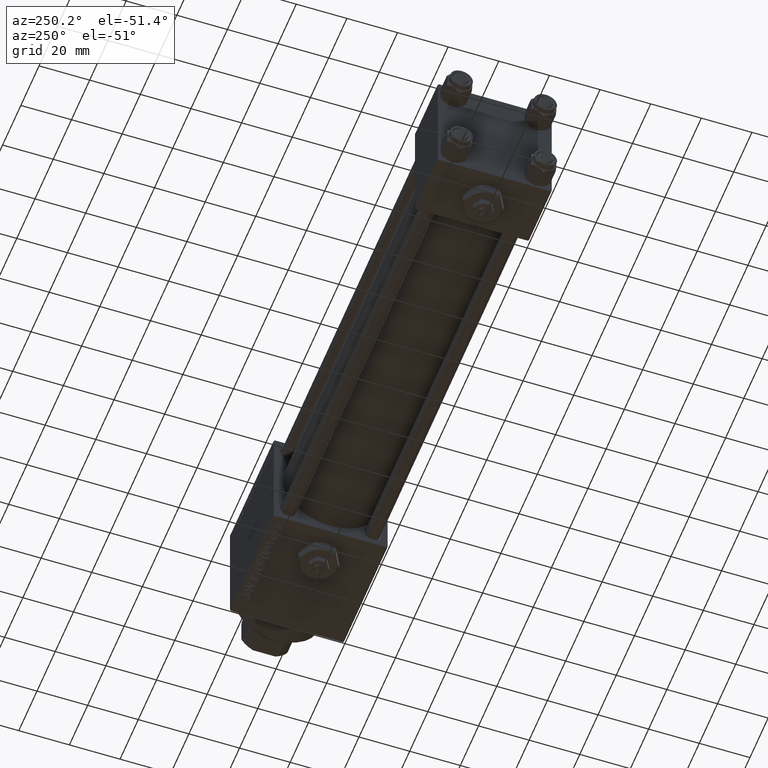
[diagram: clean part render]
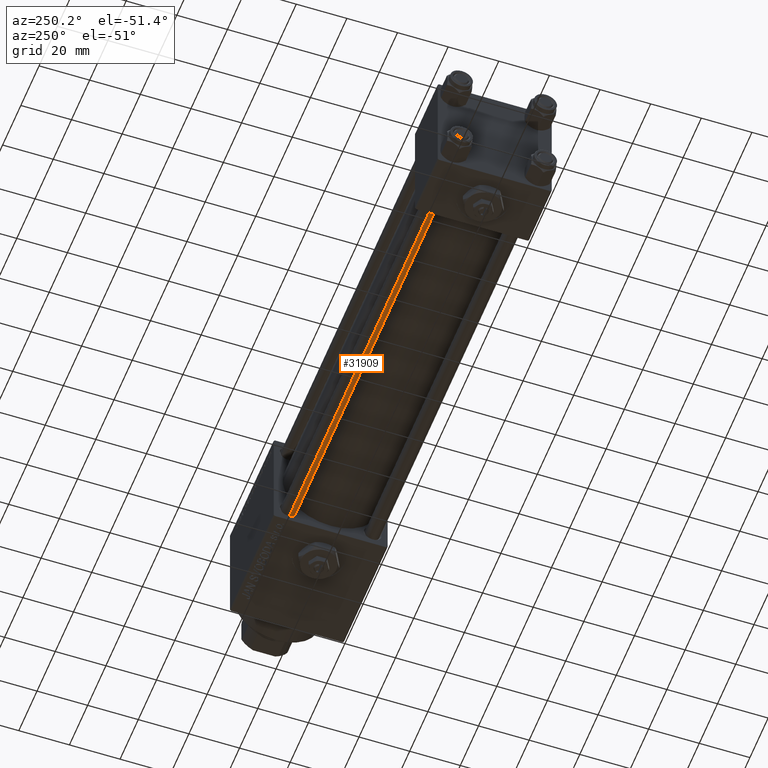
[diagram: same view with one face highlighted and labeled with its STEP entity id]
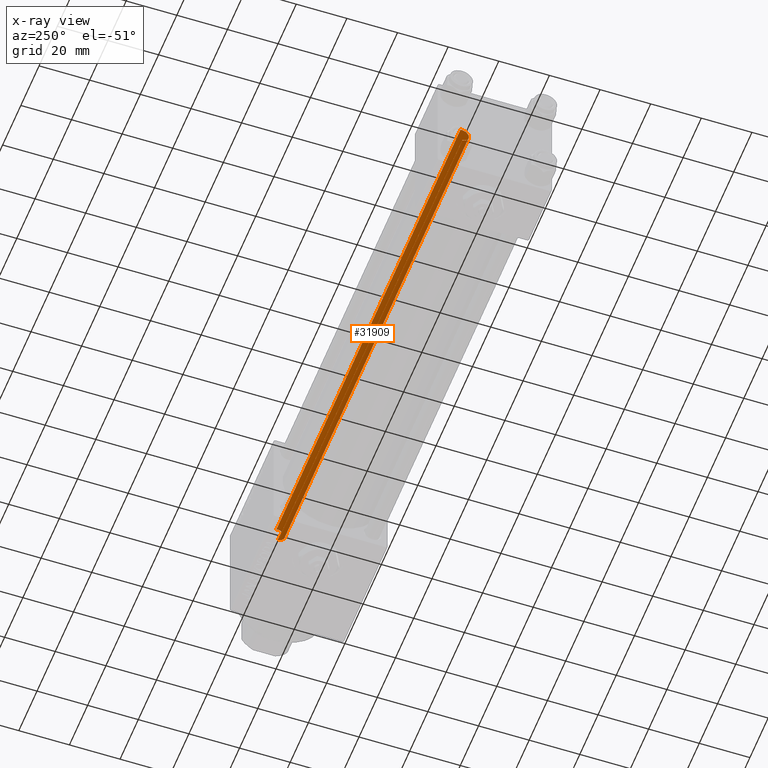
[diagram: x-ray of the same camera — body ghosted, the highlighted face saturated]
A machine part, auxiliary view. The second image highlights one B-rep face of the part: STEP entity #31909.
The next image is the same camera in x-ray: the body ghosted, the highlighted face saturated — about 0% of this face is hidden behind the body in this view.
In plain terms, the highlighted cylindrical surface (edge-blend (fillet) strip) has radius 3 mm, axis along (1, -0, 0).
Its self-contained STEP definition (entity closure, byte-faithful):
#705 = VERTEX_POINT ( 'NONE', #16305 ) ;
#1947 = VERTEX_POINT ( 'NONE', #28889 ) ;
#3213 = ORIENTED_EDGE ( 'NONE', *, *, #46983, .T. ) ;
#3288 = EDGE_CURVE ( 'NONE', #12715, #42295, #29601, .T. ) ;
#5066 = ORIENTED_EDGE ( 'NONE', *, *, #45666, .F. ) ;
#7607 = LINE ( 'NONE', #8389, #25537 ) ;
#8389 = CARTESIAN_POINT ( 'NONE',  ( -3.000000000000000444, 0.000000000000000000, 203.0000000000000000 ) ) ;
#9184 = CARTESIAN_POINT ( 'NONE',  ( 3.000000000000000444, 3.673940397442059868E-16, 0.5000000000001114664 ) ) ;
#11752 = VECTOR ( 'NONE', #18375, 1000.000000000000000 ) ;
#12715 = VERTEX_POINT ( 'NONE', #26862 ) ;
#15765 = DIRECTION ( 'NONE',  ( 1.000000000000000000, 0.000000000000000000, 0.000000000000000000 ) ) ;
#16305 = CARTESIAN_POINT ( 'NONE',  ( -3.000000000000000444, 0.000000000000000000, 202.5000000000000853 ) ) ;
#17012 = CIRCLE ( 'NONE', #36401, 3.000000000000000444 ) ;
#18375 = DIRECTION ( 'NONE',  ( -0.000000000000000000, -0.000000000000000000, -1.000000000000000000 ) ) ;
#19369 = CARTESIAN_POINT ( 'NONE',  ( 0.000000000000000000, 0.000000000000000000, 0.5000000000001114664 ) ) ;
#21055 = ORIENTED_EDGE ( 'NONE', *, *, #3288, .T. ) ;
#22129 = EDGE_LOOP ( 'NONE', ( #5066, #3213, #37280, #21055 ) ) ;
#24565 = AXIS2_PLACEMENT_3D ( 'NONE', #19369, #35443, #51514 ) ;
#25537 = VECTOR ( 'NONE', #48220, 1000.000000000000000 ) ;
#26568 = EDGE_CURVE ( 'NONE', #705, #12715, #7607, .T. ) ;
#26862 = CARTESIAN_POINT ( 'NONE',  ( -3.000000000000000444, 0.000000000000000000, 0.5000000000001114664 ) ) ;
#28889 = CARTESIAN_POINT ( 'NONE',  ( 3.000000000000000444, 3.673940397442059868E-16, 202.5000000000000853 ) ) ;
#29601 = CIRCLE ( 'NONE', #24565, 3.000000000000000444 ) ;
#29724 = LINE ( 'NONE', #49742, #11752 ) ;
#31331 = DIRECTION ( 'NONE',  ( 0.000000000000000000, 0.000000000000000000, -1.000000000000000000 ) ) ;
#31909 = ADVANCED_FACE ( 'NONE', ( #37421 ), #38185, .T. ) ;
#33975 = CARTESIAN_POINT ( 'NONE',  ( 0.000000000000000000, 0.000000000000000000, 203.0000000000000000 ) ) ;
#35443 = DIRECTION ( 'NONE',  ( -0.000000000000000000, -0.000000000000000000, 1.000000000000000000 ) ) ;
#36401 = AXIS2_PLACEMENT_3D ( 'NONE', #38973, #31331, #15765 ) ;
#37280 = ORIENTED_EDGE ( 'NONE', *, *, #26568, .T. ) ;
#37421 = FACE_OUTER_BOUND ( 'NONE', #22129, .T. ) ;
#37923 = DIRECTION ( 'NONE',  ( -0.000000000000000000, -0.000000000000000000, -1.000000000000000000 ) ) ;
#38185 = CYLINDRICAL_SURFACE ( 'NONE', #51000, 3.000000000000000444 ) ;
#38973 = CARTESIAN_POINT ( 'NONE',  ( 0.000000000000000000, 0.000000000000000000, 202.5000000000000853 ) ) ;
#42295 = VERTEX_POINT ( 'NONE', #9184 ) ;
#45666 = EDGE_CURVE ( 'NONE', #1947, #42295, #29724, .T. ) ;
#45839 = DIRECTION ( 'NONE',  ( -1.000000000000000000, 0.000000000000000000, 0.000000000000000000 ) ) ;
#46983 = EDGE_CURVE ( 'NONE', #1947, #705, #17012, .T. ) ;
#48220 = DIRECTION ( 'NONE',  ( -0.000000000000000000, -0.000000000000000000, -1.000000000000000000 ) ) ;
#49742 = CARTESIAN_POINT ( 'NONE',  ( 3.000000000000000444, 3.673940397442059868E-16, 203.0000000000000000 ) ) ;
#51000 = AXIS2_PLACEMENT_3D ( 'NONE', #33975, #37923, #45839 ) ;
#51514 = DIRECTION ( 'NONE',  ( 1.000000000000000000, 0.000000000000000000, 0.000000000000000000 ) ) ;